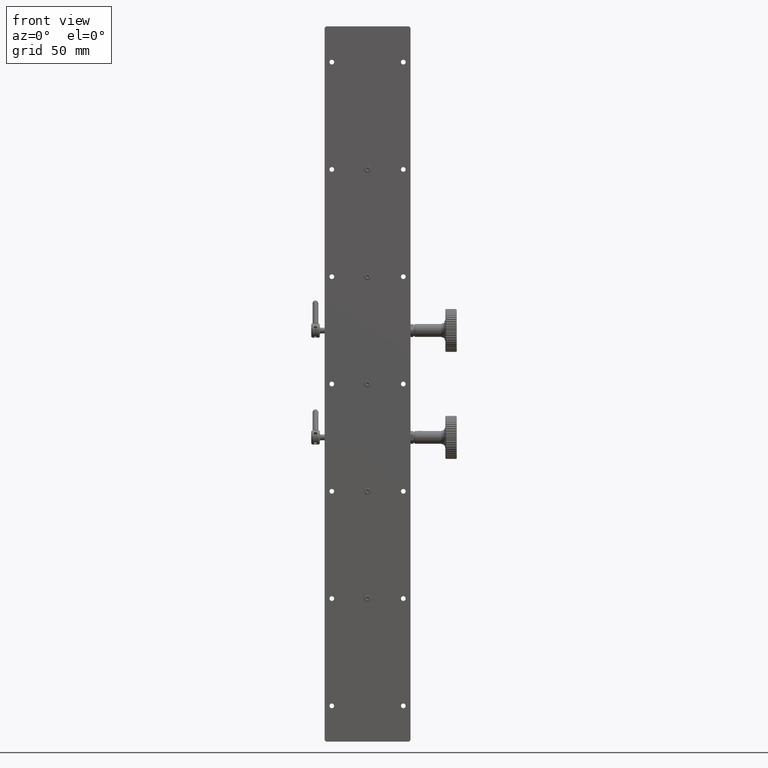
[diagram: clean part render]
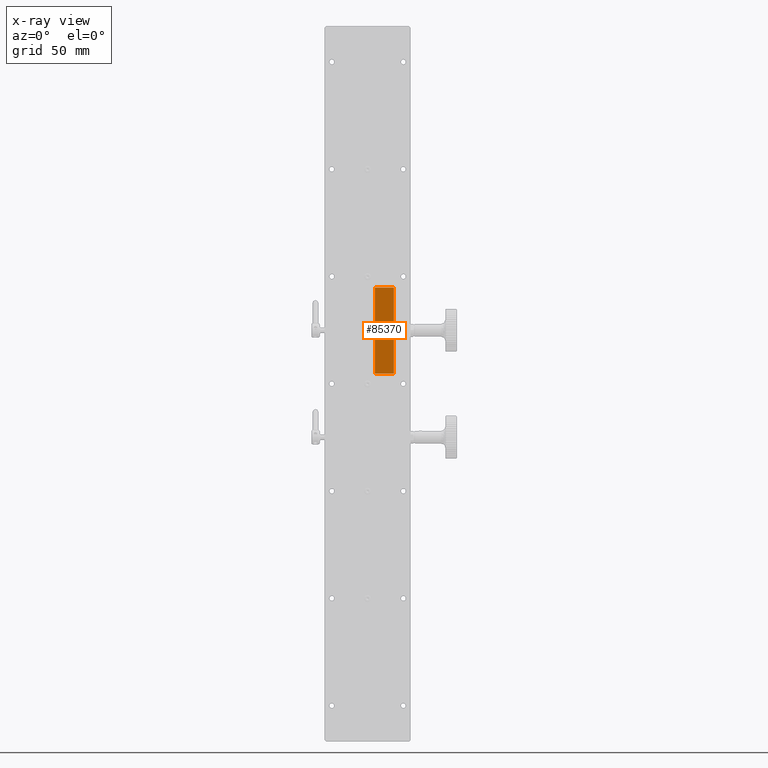
[diagram: x-ray — body ghosted, one internal face saturated and labeled with its STEP entity id]
A machine part, front view, then the same camera in x-ray: the body is ghosted and one INTERNAL B-rep face — a face not visible from any outside direction — is saturated and labeled: STEP entity #85370.
In plain terms, the highlighted planar face has unit normal (-0, 1, 0).
Its self-contained STEP definition (entity closure, byte-faithful):
#4322 = DIRECTION ( 'NONE',  ( -0.000000000000000000, 0.000000000000000000, 1.000000000000000000 ) ) ;
#7954 = EDGE_CURVE ( 'NONE', #28113, #98038, #195596, .T. ) ;
#14994 = CARTESIAN_POINT ( 'NONE',  ( 69.50156960994840460, 69.60272800986773234, 271.1623115483058086 ) ) ;
#18062 = PLANE ( 'NONE',  #96260 ) ;
#26855 = EDGE_CURVE ( 'NONE', #98038, #138067, #129132, .T. ) ;
#28113 = VERTEX_POINT ( 'NONE', #14994 ) ;
#29557 = LINE ( 'NONE', #77634, #130143 ) ;
#36417 = DIRECTION ( 'NONE',  ( -7.112547775007286297E-15, 1.000000000000000000, 0.000000000000000000 ) ) ;
#40379 = ORIENTED_EDGE ( 'NONE', *, *, #131889, .F. ) ;
#42824 = VECTOR ( 'NONE', #116975, 1000.000000000000000 ) ;
#43985 = CARTESIAN_POINT ( 'NONE',  ( 82.88832095589515347, 69.60272800986780339, 331.1623115483058086 ) ) ;
#50778 = ORIENTED_EDGE ( 'NONE', *, *, #26855, .T. ) ;
#52012 = EDGE_LOOP ( 'NONE', ( #50778, #135890, #40379, #114110 ) ) ;
#77634 = CARTESIAN_POINT ( 'NONE',  ( 69.50156960994840460, 69.60272800986773234, 331.1623115483058086 ) ) ;
#81469 = DIRECTION ( 'NONE',  ( -1.000000000000000000, -7.112547775007286297E-15, 0.000000000000000000 ) ) ;
#85370 = ADVANCED_FACE ( 'NONE', ( #130534 ), #18062, .F. ) ;
#92038 = VERTEX_POINT ( 'NONE', #162231 ) ;
#96260 = AXIS2_PLACEMENT_3D ( 'NONE', #192938, #36417, #81469 ) ;
#98038 = VERTEX_POINT ( 'NONE', #200059 ) ;
#99442 = CARTESIAN_POINT ( 'NONE',  ( 64.50156960994726774, 69.60272800986773234, 271.1623115483058086 ) ) ;
#114110 = ORIENTED_EDGE ( 'NONE', *, *, #7954, .T. ) ;
#115817 = DIRECTION ( 'NONE',  ( 1.000000000000000000, 0.000000000000000000, -0.000000000000000000 ) ) ;
#116975 = DIRECTION ( 'NONE',  ( 1.000000000000000000, 0.000000000000000000, -0.000000000000000000 ) ) ;
#123300 = EDGE_CURVE ( 'NONE', #92038, #138067, #177374, .T. ) ;
#127053 = VECTOR ( 'NONE', #115817, 1000.000000000000000 ) ;
#129132 = LINE ( 'NONE', #187507, #168809 ) ;
#130143 = VECTOR ( 'NONE', #154394, 1000.000000000000000 ) ;
#130534 = FACE_OUTER_BOUND ( 'NONE', #52012, .T. ) ;
#131889 = EDGE_CURVE ( 'NONE', #28113, #92038, #29557, .T. ) ;
#135890 = ORIENTED_EDGE ( 'NONE', *, *, #123300, .F. ) ;
#138067 = VERTEX_POINT ( 'NONE', #43985 ) ;
#154394 = DIRECTION ( 'NONE',  ( 0.000000000000000000, 0.000000000000000000, 1.000000000000000000 ) ) ;
#160015 = CARTESIAN_POINT ( 'NONE',  ( 64.50156960994726774, 69.60272800986773234, 331.1623115483058086 ) ) ;
#162231 = CARTESIAN_POINT ( 'NONE',  ( 69.50156960994840460, 69.60272800986773234, 331.1623115483058086 ) ) ;
#168809 = VECTOR ( 'NONE', #4322, 1000.000000000000000 ) ;
#177374 = LINE ( 'NONE', #160015, #42824 ) ;
#187507 = CARTESIAN_POINT ( 'NONE',  ( 82.88832095589516769, 69.60272800986783182, 331.1623115483058086 ) ) ;
#192938 = CARTESIAN_POINT ( 'NONE',  ( 69.50156960994840460, 69.60272800986773234, 331.1623115483058086 ) ) ;
#195596 = LINE ( 'NONE', #99442, #127053 ) ;
#200059 = CARTESIAN_POINT ( 'NONE',  ( 82.88832095589515347, 69.60272800986780339, 271.1623115483058086 ) ) ;